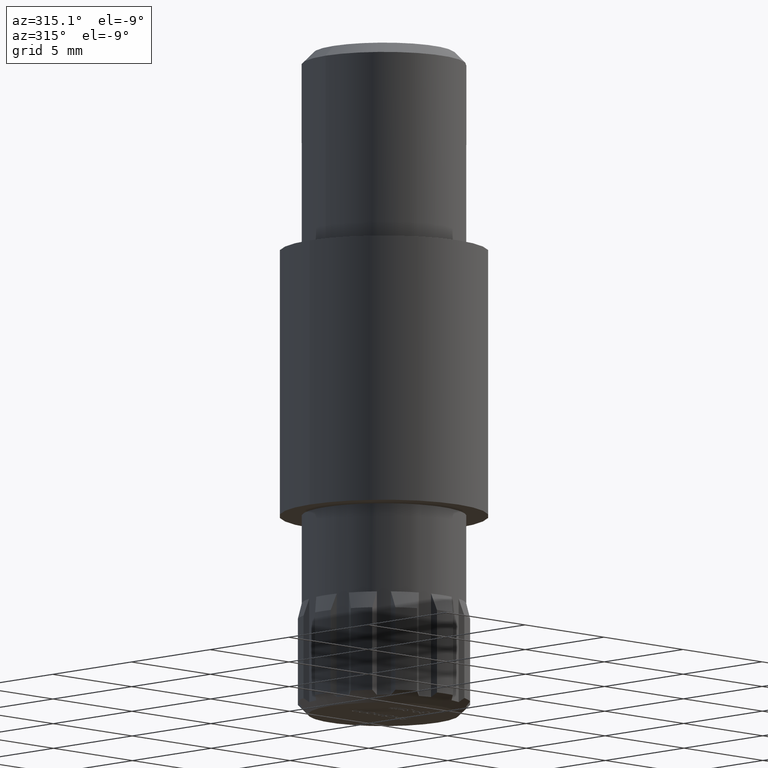
[diagram: clean part render]
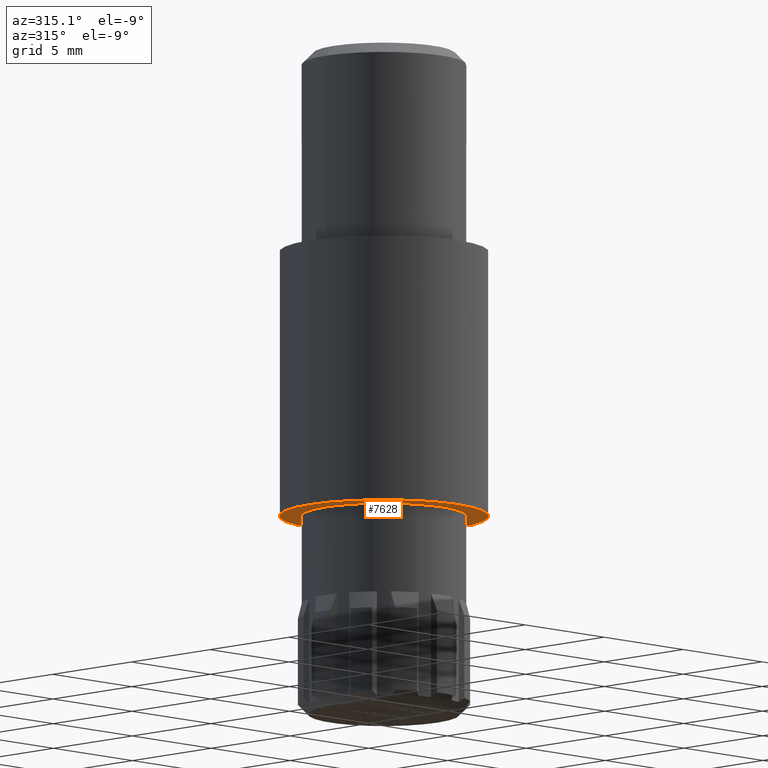
[diagram: same view with one face highlighted and labeled with its STEP entity id]
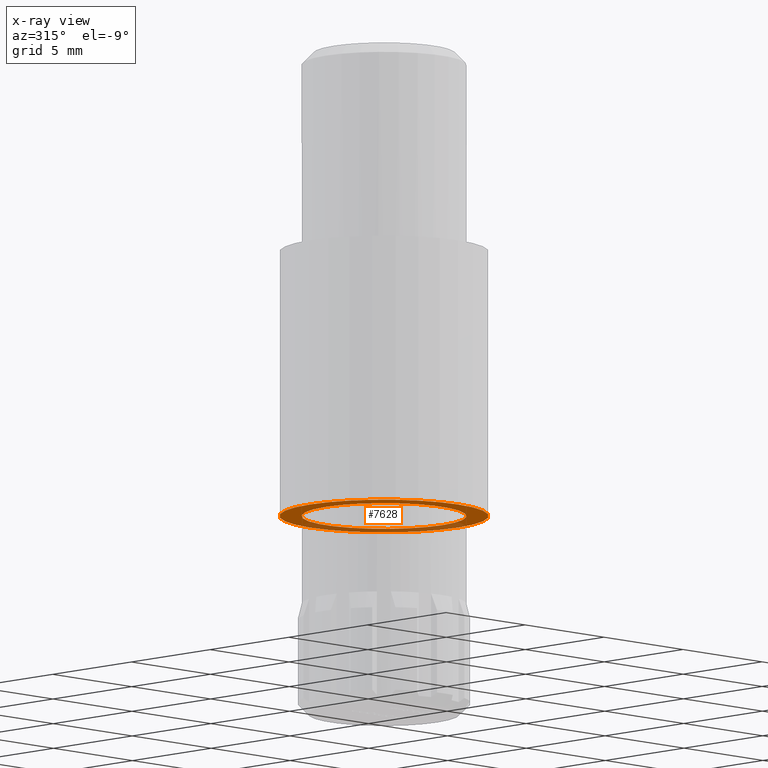
[diagram: x-ray of the same camera — body ghosted, the highlighted face saturated]
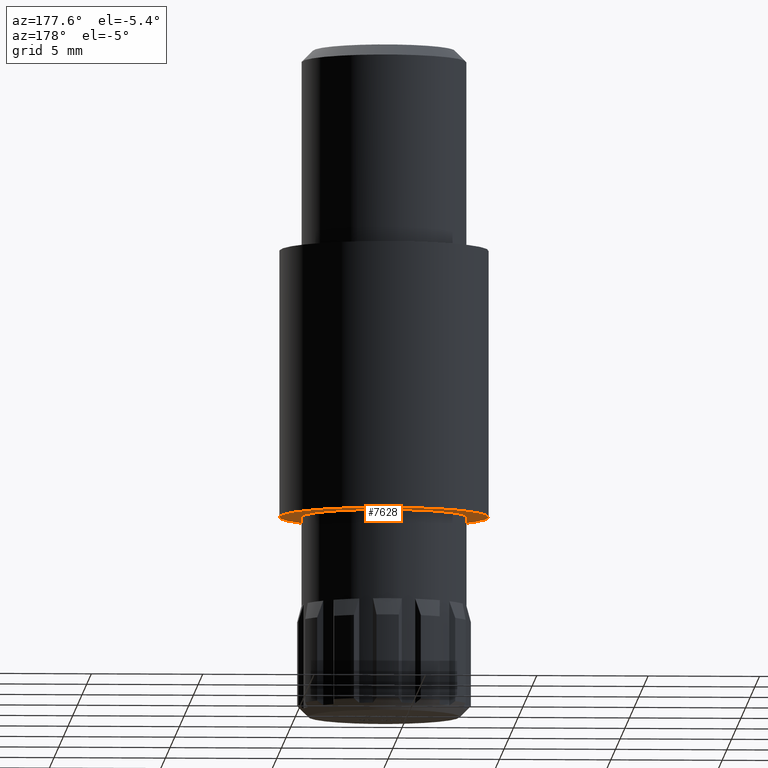
[diagram: same view with one face highlighted and labeled with its STEP entity id]
A machine part, auxiliary view. The second image highlights one B-rep face of the part: STEP entity #7628.
The next image is the same camera in x-ray: the body ghosted, the highlighted face saturated — about 31% of this face is hidden behind the body in this view.
A second angle (auxiliary view) of the same face is appended — the face is thin or edge-on in the first view.
In plain terms, the highlighted planar face has unit normal (0, 0, 1).
Its self-contained STEP definition (entity closure, byte-faithful):
#4 = CARTESIAN_POINT ( 'NONE',  ( 4.700000000000000200, 5.755839955992559700E-016, 0.0000000000000000000 ) ) ;
#678 = EDGE_LOOP ( 'NONE', ( #9578, #8258 ) ) ;
#1309 = CARTESIAN_POINT ( 'NONE',  ( -3.700000000000000200, 0.0000000000000000000, 0.0000000000000000000 ) ) ;
#2124 = DIRECTION ( 'NONE',  ( 1.000000000000000000, 0.0000000000000000000, 0.0000000000000000000 ) ) ;
#2161 = EDGE_CURVE ( 'NONE', #8030, #9260, #8244, .T. ) ;
#2474 = ORIENTED_EDGE ( 'NONE', *, *, #11689, .F. ) ;
#2885 = CIRCLE ( 'NONE', #4269, 4.700000000000000200 ) ;
#2947 = PLANE ( 'NONE',  #9336 ) ;
#3600 = DIRECTION ( 'NONE',  ( 0.0000000000000000000, 0.0000000000000000000, 1.000000000000000000 ) ) ;
#3807 = DIRECTION ( 'NONE',  ( 0.0000000000000000000, 0.0000000000000000000, 1.000000000000000000 ) ) ;
#4044 = VERTEX_POINT ( 'NONE', #4 ) ;
#4142 = DIRECTION ( 'NONE',  ( 1.000000000000000000, 0.0000000000000000000, -0.0000000000000000000 ) ) ;
#4269 = AXIS2_PLACEMENT_3D ( 'NONE', #9946, #3600, #11013 ) ;
#4375 = AXIS2_PLACEMENT_3D ( 'NONE', #10142, #3807, #11222 ) ;
#4686 = EDGE_CURVE ( 'NONE', #13404, #4044, #2885, .T. ) ;
#4978 = ORIENTED_EDGE ( 'NONE', *, *, #4686, .F. ) ;
#5341 = DIRECTION ( 'NONE',  ( 0.0000000000000000000, 0.0000000000000000000, 1.000000000000000000 ) ) ;
#5376 = DIRECTION ( 'NONE',  ( 0.0000000000000000000, 0.0000000000000000000, 1.000000000000000000 ) ) ;
#6481 = CARTESIAN_POINT ( 'NONE',  ( -4.700000000000000200, 0.0000000000000000000, 0.0000000000000000000 ) ) ;
#7480 = CARTESIAN_POINT ( 'NONE',  ( 0.0000000000000000000, 0.0000000000000000000, 0.0000000000000000000 ) ) ;
#7628 = ADVANCED_FACE ( 'NONE', ( #12911, #12561 ), #2947, .F. ) ;
#7709 = EDGE_CURVE ( 'NONE', #9260, #8030, #9445, .T. ) ;
#7905 = CIRCLE ( 'NONE', #4375, 4.700000000000000200 ) ;
#8030 = VERTEX_POINT ( 'NONE', #12831 ) ;
#8244 = CIRCLE ( 'NONE', #12950, 3.700000000000000200 ) ;
#8258 = ORIENTED_EDGE ( 'NONE', *, *, #2161, .T. ) ;
#9260 = VERTEX_POINT ( 'NONE', #1309 ) ;
#9336 = AXIS2_PLACEMENT_3D ( 'NONE', #9430, #10474, #4142 ) ;
#9430 = CARTESIAN_POINT ( 'NONE',  ( 0.0000000000000000000, 0.0000000000000000000, 0.0000000000000000000 ) ) ;
#9445 = CIRCLE ( 'NONE', #10028, 3.700000000000000200 ) ;
#9578 = ORIENTED_EDGE ( 'NONE', *, *, #7709, .T. ) ;
#9946 = CARTESIAN_POINT ( 'NONE',  ( 0.0000000000000000000, 0.0000000000000000000, 0.0000000000000000000 ) ) ;
#10028 = AXIS2_PLACEMENT_3D ( 'NONE', #11681, #5341, #12736 ) ;
#10142 = CARTESIAN_POINT ( 'NONE',  ( 0.0000000000000000000, 0.0000000000000000000, 0.0000000000000000000 ) ) ;
#10474 = DIRECTION ( 'NONE',  ( 0.0000000000000000000, 0.0000000000000000000, 1.000000000000000000 ) ) ;
#11013 = DIRECTION ( 'NONE',  ( 1.000000000000000000, 0.0000000000000000000, 0.0000000000000000000 ) ) ;
#11222 = DIRECTION ( 'NONE',  ( 1.000000000000000000, 0.0000000000000000000, 0.0000000000000000000 ) ) ;
#11681 = CARTESIAN_POINT ( 'NONE',  ( 0.0000000000000000000, 0.0000000000000000000, 0.0000000000000000000 ) ) ;
#11689 = EDGE_CURVE ( 'NONE', #4044, #13404, #7905, .T. ) ;
#12561 = FACE_BOUND ( 'NONE', #678, .T. ) ;
#12736 = DIRECTION ( 'NONE',  ( 1.000000000000000000, 0.0000000000000000000, 0.0000000000000000000 ) ) ;
#12831 = CARTESIAN_POINT ( 'NONE',  ( 3.700000000000000200, 4.531193156845206200E-016, 0.0000000000000000000 ) ) ;
#12911 = FACE_OUTER_BOUND ( 'NONE', #13092, .T. ) ;
#12950 = AXIS2_PLACEMENT_3D ( 'NONE', #7480, #5376, #2124 ) ;
#13092 = EDGE_LOOP ( 'NONE', ( #4978, #2474 ) ) ;
#13404 = VERTEX_POINT ( 'NONE', #6481 ) ;